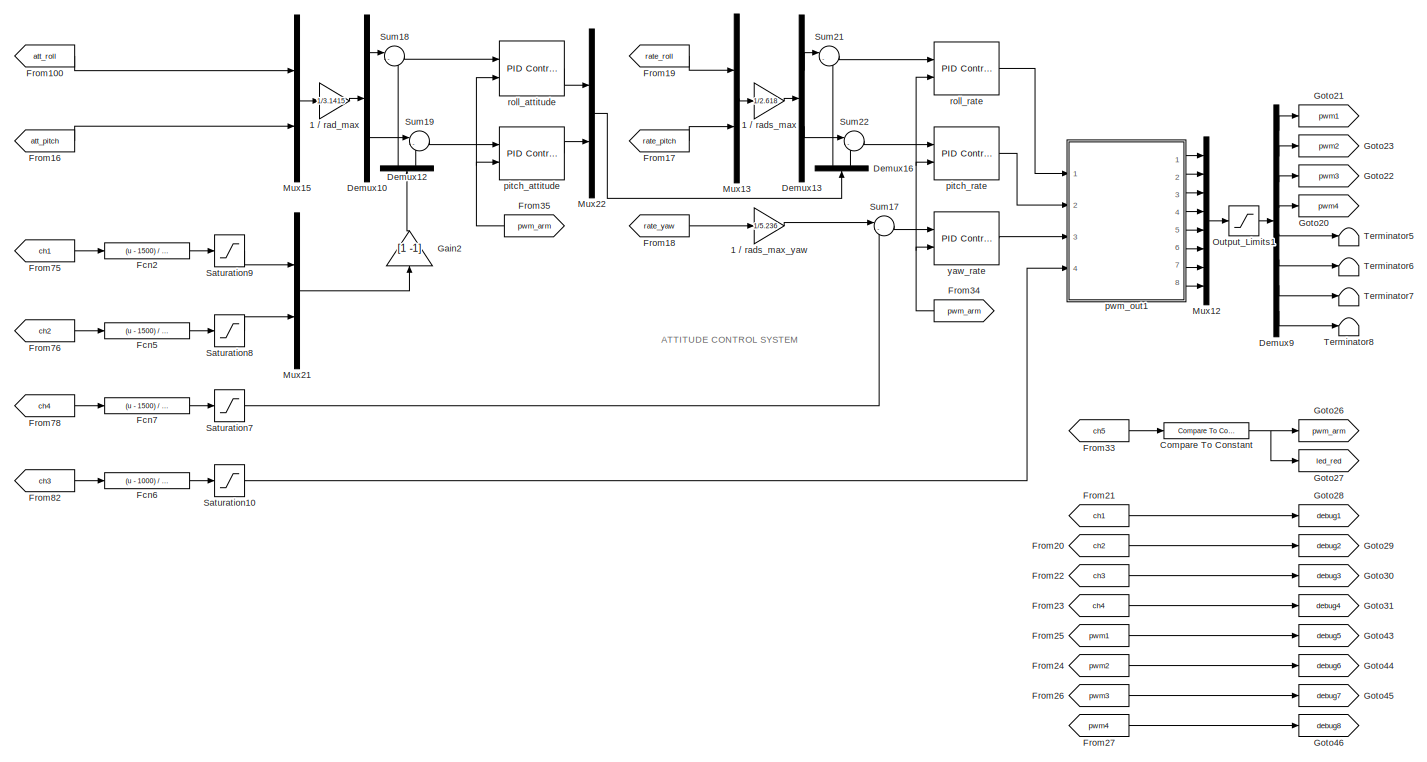
[diagram: root canvas - part 1/4, top center region]
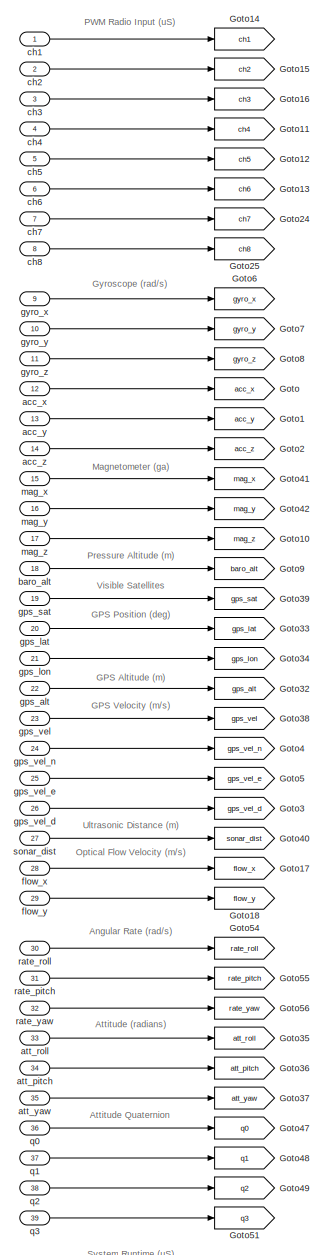
[diagram: root canvas - part 2/4, left side, full height]
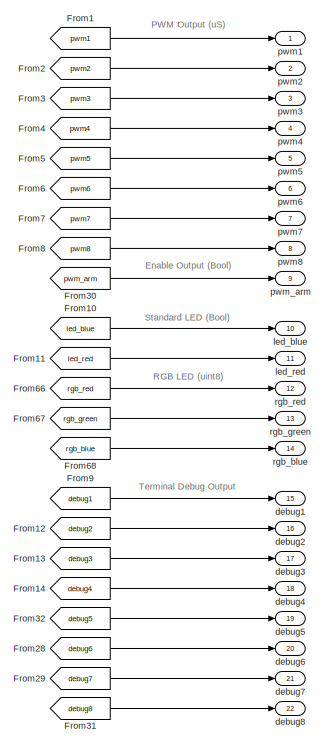
[diagram: root canvas - part 3/4, top right region]
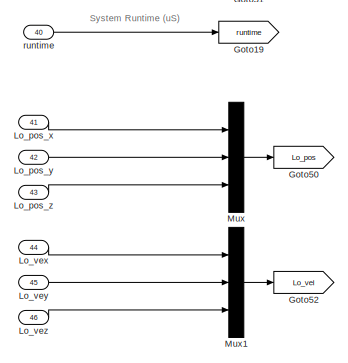
[diagram: root canvas - part 4/4, bottom left region]
MODEL slx_f82addda97a6
KIND model
CONFIG AbsTol = auto
CONFIG FixedStep = 0.004
CONFIG MaxStep = auto
CONFIG MinStep = auto
CONFIG RelTol = 1e-3
CONFIG SampleTimeConstraint = Unconstrained
CONFIG Solver = FixedStepDiscrete
CONFIG SolverMode = SingleTasking
CONFIG SolverName = FixedStepDiscrete
CONFIG StartTime = 0.0
CONFIG StopTime = inf
BLOCK [Gain] 1 // rad_max
  Commented = on
  Gain = 1/3.1415
  OutDataTypeStr = Inherit: Inherit via internal rule
  ParamDataTypeStr = Inherit: Inherit via internal rule
  SaturateOnIntegerOverflow = off
BLOCK [Gain] 1 // rads_max
  Commented = on
  Gain = 1/2.618
  OutDataTypeStr = Inherit: Inherit via internal rule
  ParamDataTypeStr = Inherit: Inherit via internal rule
  SaturateOnIntegerOverflow = off
BLOCK [Gain] 1 // rads_max_yaw
  Commented = on
  Gain = 1/5.236
  OutDataTypeStr = Inherit: Inherit via internal rule
  ParamDataTypeStr = Inherit: Inherit via internal rule
  SaturateOnIntegerOverflow = off
BLOCK [Reference] Compare To Constant  REF=simulink/Logic and Bit
Operations/Compare
To Constant
  Commented = on
  OutDataTypeStr = boolean
  Ports = [1, 1]
  SourceBlock = simulink/Logic and Bit\nOperations/Compare\nTo Constant
  SourceType = Compare To Constant
  ZeroCross = on
  const = 1500
  relop = >=
BLOCK [Demux] Demux10
  Commented = on
  DisplayOption = bar
  Outputs = 2
  Ports = [1, 2]
BLOCK [Demux] Demux12
  Commented = on
  DisplayOption = bar
  Outputs = 2
  Ports = [1, 2]
BLOCK [Demux] Demux13
  Commented = on
  DisplayOption = bar
  Outputs = 2
  Ports = [1, 2]
BLOCK [Demux] Demux16
  Commented = on
  DisplayOption = bar
  Outputs = 2
  Ports = [1, 2]
BLOCK [Demux] Demux9
  Commented = on
  DisplayOption = bar
  Outputs = 8
  Ports = [1, 8]
BLOCK [Fcn] Fcn2
  Commented = on
  Expr = (u - 1500) / 500
BLOCK [Fcn] Fcn5
  Commented = on
  Expr = (u - 1500) / 500
BLOCK [Fcn] Fcn6
  Commented = on
  Expr = (u - 1000) / 1000
BLOCK [Fcn] Fcn7
  Commented = on
  Expr = (u - 1500) / 500
BLOCK [From] From1
  GotoTag = pwm1
  TagVisibility = global
BLOCK [From] From10
  GotoTag = led_blue
BLOCK [From] From100
  Commented = on
  GotoTag = att_roll
  TagVisibility = global
BLOCK [From] From11
  GotoTag = led_red
  TagVisibility = global
BLOCK [From] From12
  GotoTag = debug2
  TagVisibility = global
BLOCK [From] From13
  GotoTag = debug3
  TagVisibility = global
BLOCK [From] From14
  GotoTag = debug4
  TagVisibility = global
BLOCK [From] From16
  Commented = on
  GotoTag = att_pitch
  TagVisibility = global
BLOCK [From] From17
  Commented = on
  GotoTag = rate_pitch
  TagVisibility = global
BLOCK [From] From18
  Commented = on
  GotoTag = rate_yaw
  TagVisibility = global
BLOCK [From] From19
  Commented = on
  GotoTag = rate_roll
  TagVisibility = global
BLOCK [From] From2
  GotoTag = pwm2
  TagVisibility = global
BLOCK [From] From20
  Commented = on
  GotoTag = ch2
  TagVisibility = global
BLOCK [From] From21
  Commented = on
  GotoTag = ch1
  TagVisibility = global
BLOCK [From] From22
  Commented = on
  GotoTag = ch3
  TagVisibility = global
BLOCK [From] From23
  Commented = on
  GotoTag = ch4
  TagVisibility = global
BLOCK [From] From24
  Commented = on
  GotoTag = pwm2
  TagVisibility = global
BLOCK [From] From25
  Commented = on
  GotoTag = pwm1
  TagVisibility = global
BLOCK [From] From26
  Commented = on
  GotoTag = pwm3
  TagVisibility = global
BLOCK [From] From27
  Commented = on
  GotoTag = pwm4
  TagVisibility = global
BLOCK [From] From28
  GotoTag = debug6
  TagVisibility = global
BLOCK [From] From29
  GotoTag = debug7
  TagVisibility = global
BLOCK [From] From3
  GotoTag = pwm3
BLOCK [From] From30
  GotoTag = pwm_arm
  TagVisibility = global
BLOCK [From] From31
  GotoTag = debug8
  TagVisibility = global
BLOCK [From] From32
  GotoTag = debug5
  TagVisibility = global
BLOCK [From] From33
  Commented = on
  GotoTag = ch5
  TagVisibility = global
BLOCK [From] From34
  Commented = on
  GotoTag = pwm_arm
  TagVisibility = global
BLOCK [From] From35
  Commented = on
  GotoTag = pwm_arm
  TagVisibility = global
BLOCK [From] From4
  GotoTag = pwm4
BLOCK [From] From5
  GotoTag = pwm5
BLOCK [From] From6
  GotoTag = pwm6
BLOCK [From] From66
  GotoTag = rgb_red
  TagVisibility = global
BLOCK [From] From67
  GotoTag = rgb_green
  TagVisibility = global
BLOCK [From] From68
  GotoTag = rgb_blue
  TagVisibility = global
BLOCK [From] From7
  GotoTag = pwm7
BLOCK [From] From75
  Commented = on
  GotoTag = ch1
  TagVisibility = global
BLOCK [From] From76
  Commented = on
  GotoTag = ch2
  TagVisibility = global
BLOCK [From] From78
  Commented = on
  GotoTag = ch4
  TagVisibility = global
BLOCK [From] From8
  GotoTag = pwm8
BLOCK [From] From82
  Commented = on
  GotoTag = ch3
  TagVisibility = global
BLOCK [From] From9
  GotoTag = debug1
  TagVisibility = global
BLOCK [Gain] Gain2
  Commented = on
  Gain = [1 -1]
  OutDataTypeStr = Inherit: Inherit via internal rule
  ParamDataTypeStr = Inherit: Inherit via internal rule
  SaturateOnIntegerOverflow = off
BLOCK [Goto] Goto
  GotoTag = acc_x
  TagVisibility = global
BLOCK [Goto] Goto1
  GotoTag = acc_y
  TagVisibility = global
BLOCK [Goto] Goto10
  GotoTag = mag_z
  TagVisibility = global
BLOCK [Goto] Goto11
  GotoTag = ch4
  TagVisibility = global
BLOCK [Goto] Goto12
  GotoTag = ch5
  TagVisibility = global
BLOCK [Goto] Goto13
  GotoTag = ch6
  TagVisibility = global
BLOCK [Goto] Goto14
  GotoTag = ch1
  TagVisibility = global
BLOCK [Goto] Goto15
  GotoTag = ch2
  TagVisibility = global
BLOCK [Goto] Goto16
  GotoTag = ch3
  TagVisibility = global
BLOCK [Goto] Goto17
  GotoTag = flow_x
  TagVisibility = global
BLOCK [Goto] Goto18
  GotoTag = flow_y
  TagVisibility = global
BLOCK [Goto] Goto19
  GotoTag = runtime
  TagVisibility = global
BLOCK [Goto] Goto2
  GotoTag = acc_z
  TagVisibility = global
BLOCK [Goto] Goto20
  Commented = on
  GotoTag = pwm4
  TagVisibility = global
BLOCK [Goto] Goto21
  Commented = on
  GotoTag = pwm1
  TagVisibility = global
BLOCK [Goto] Goto22
  Commented = on
  GotoTag = pwm3
  TagVisibility = global
BLOCK [Goto] Goto23
  Commented = on
  GotoTag = pwm2
  TagVisibility = global
BLOCK [Goto] Goto24
  GotoTag = ch7
  TagVisibility = global
BLOCK [Goto] Goto25
  GotoTag = ch8
  TagVisibility = global
BLOCK [Goto] Goto26
  Commented = on
  GotoTag = pwm_arm
  TagVisibility = global
BLOCK [Goto] Goto27
  Commented = on
  GotoTag = led_red
  TagVisibility = global
BLOCK [Goto] Goto28
  Commented = on
  GotoTag = debug1
  TagVisibility = global
BLOCK [Goto] Goto29
  Commented = on
  GotoTag = debug2
  TagVisibility = global
BLOCK [Goto] Goto3
  GotoTag = gps_vel_d
  TagVisibility = global
BLOCK [Goto] Goto30
  Commented = on
  GotoTag = debug3
  TagVisibility = global
BLOCK [Goto] Goto31
  Commented = on
  GotoTag = debug4
  TagVisibility = global
BLOCK [Goto] Goto32
  GotoTag = gps_alt
  TagVisibility = global
BLOCK [Goto] Goto33
  GotoTag = gps_lat
  TagVisibility = global
BLOCK [Goto] Goto34
  GotoTag = gps_lon
  TagVisibility = global
BLOCK [Goto] Goto35
  GotoTag = att_roll
  TagVisibility = global
BLOCK [Goto] Goto36
  GotoTag = att_pitch
  TagVisibility = global
BLOCK [Goto] Goto37
  GotoTag = att_yaw
  TagVisibility = global
BLOCK [Goto] Goto38
  GotoTag = gps_vel
  TagVisibility = global
BLOCK [Goto] Goto39
  GotoTag = gps_sat
  TagVisibility = global
BLOCK [Goto] Goto4
  GotoTag = gps_vel_n
  TagVisibility = global
BLOCK [Goto] Goto40
  GotoTag = sonar_dist
  TagVisibility = global
BLOCK [Goto] Goto41
  GotoTag = mag_x
  TagVisibility = global
BLOCK [Goto] Goto42
  GotoTag = mag_y
  TagVisibility = global
BLOCK [Goto] Goto43
  Commented = on
  GotoTag = debug5
  TagVisibility = global
BLOCK [Goto] Goto44
  Commented = on
  GotoTag = debug6
  TagVisibility = global
BLOCK [Goto] Goto45
  Commented = on
  GotoTag = debug7
  TagVisibility = global
BLOCK [Goto] Goto46
  Commented = on
  GotoTag = debug8
  TagVisibility = global
BLOCK [Goto] Goto47
  GotoTag = q0
  TagVisibility = global
BLOCK [Goto] Goto48
  GotoTag = q1
  TagVisibility = global
BLOCK [Goto] Goto49
  GotoTag = q2
  TagVisibility = global
BLOCK [Goto] Goto5
  GotoTag = gps_vel_e
  TagVisibility = global
BLOCK [Goto] Goto50
  GotoTag = Lo_pos
  TagVisibility = global
BLOCK [Goto] Goto51
  GotoTag = q3
  TagVisibility = global
BLOCK [Goto] Goto52
  GotoTag = Lo_vel
  TagVisibility = global
BLOCK [Goto] Goto54
  GotoTag = rate_roll
  TagVisibility = global
BLOCK [Goto] Goto55
  GotoTag = rate_pitch
  TagVisibility = global
BLOCK [Goto] Goto56
  GotoTag = rate_yaw
  TagVisibility = global
BLOCK [Goto] Goto6
  GotoTag = gyro_x
  TagVisibility = global
BLOCK [Goto] Goto7
  GotoTag = gyro_y
  TagVisibility = global
BLOCK [Goto] Goto8
  GotoTag = gyro_z
  TagVisibility = global
BLOCK [Goto] Goto9
  GotoTag = baro_alt
  TagVisibility = global
BLOCK [Inport] Lo_pos_x
  IconDisplay = Port number
  Port = 41
  PortDimensions = [1,1]
  SampleTime = T_ctrl
  VarSizeSig = No
BLOCK [Inport] Lo_pos_y
  IconDisplay = Port number
  Port = 42
  PortDimensions = [1,1]
  SampleTime = T_ctrl
  VarSizeSig = No
BLOCK [Inport] Lo_pos_z
  IconDisplay = Port number
  Port = 43
  PortDimensions = [1,1]
  SampleTime = T_ctrl
  VarSizeSig = No
BLOCK [Inport] Lo_vex
  IconDisplay = Port number
  Port = 44
  PortDimensions = [1,1]
  SampleTime = T_ctrl
  VarSizeSig = No
BLOCK [Inport] Lo_vey
  IconDisplay = Port number
  Port = 45
  PortDimensions = [1,1]
  SampleTime = T_ctrl
  VarSizeSig = No
BLOCK [Inport] Lo_vez
  IconDisplay = Port number
  Port = 46
  PortDimensions = [1,1]
  SampleTime = T_ctrl
  VarSizeSig = No
BLOCK [Mux] Mux
  DisplayOption = bar
  Inputs = 3
  Ports = [3, 1]
BLOCK [Mux] Mux1
  DisplayOption = bar
  Inputs = 3
  Ports = [3, 1]
BLOCK [Mux] Mux12
  Commented = on
  DisplayOption = bar
  Inputs = 8
  Ports = [8, 1]
BLOCK [Mux] Mux13
  Commented = on
  DisplayOption = bar
  Inputs = 2
  Ports = [2, 1]
BLOCK [Mux] Mux15
  Commented = on
  DisplayOption = bar
  Inputs = 2
  Ports = [2, 1]
BLOCK [Mux] Mux21
  Commented = on
  DisplayOption = bar
  Inputs = 2
  Ports = [2, 1]
BLOCK [Mux] Mux22
  Commented = on
  DisplayOption = bar
  Inputs = 2
  Ports = [2, 1]
BLOCK [Saturate] Output_Limits1
  Commented = on
  InputPortMap = u0
  LowerLimit = 1000
  Ports = [1, 1]
  UpperLimit = 2000
BLOCK [Saturate] Saturation10
  Commented = on
  InputPortMap = u0
  LowerLimit = 0
  Ports = [1, 1]
  UpperLimit = 1
BLOCK [Saturate] Saturation7
  Commented = on
  InputPortMap = u0
  LowerLimit = -1
  Ports = [1, 1]
  UpperLimit = 1
BLOCK [Saturate] Saturation8
  Commented = on
  InputPortMap = u0
  LowerLimit = -1
  Ports = [1, 1]
  UpperLimit = 1
BLOCK [Saturate] Saturation9
  Commented = on
  InputPortMap = u0
  LowerLimit = -1
  Ports = [1, 1]
  UpperLimit = 1
BLOCK [Sum] Sum17
  Commented = on
  IconShape = round
  InputSameDT = off
  Inputs = |-+
  OutDataTypeStr = Inherit: Inherit via internal rule
  Ports = [2, 1]
  SaturateOnIntegerOverflow = off
BLOCK [Sum] Sum18
  Commented = on
  IconShape = round
  InputSameDT = off
  Inputs = |-+
  OutDataTypeStr = Inherit: Inherit via internal rule
  Ports = [2, 1]
  SaturateOnIntegerOverflow = off
BLOCK [Sum] Sum19
  Commented = on
  IconShape = round
  InputSameDT = off
  Inputs = |-+
  OutDataTypeStr = Inherit: Inherit via internal rule
  Ports = [2, 1]
  SaturateOnIntegerOverflow = off
BLOCK [Sum] Sum21
  Commented = on
  IconShape = round
  InputSameDT = off
  Inputs = |-+
  OutDataTypeStr = Inherit: Inherit via internal rule
  Ports = [2, 1]
  SaturateOnIntegerOverflow = off
BLOCK [Sum] Sum22
  Commented = on
  IconShape = round
  InputSameDT = off
  Inputs = |-+
  OutDataTypeStr = Inherit: Inherit via internal rule
  Ports = [2, 1]
  SaturateOnIntegerOverflow = off
BLOCK [Terminator] Terminator5
  Commented = on
BLOCK [Terminator] Terminator6
  Commented = on
BLOCK [Terminator] Terminator7
  Commented = on
BLOCK [Terminator] Terminator8
  Commented = on
BLOCK [Inport] acc_x
  IconDisplay = Port number
  Port = 12
BLOCK [Inport] acc_y
  IconDisplay = Port number
  Port = 13
BLOCK [Inport] acc_z
  IconDisplay = Port number
  Port = 14
BLOCK [Inport] att_pitch
  IconDisplay = Port number
  Port = 34
BLOCK [Inport] att_roll
  IconDisplay = Port number
  Port = 33
BLOCK [Inport] att_yaw
  IconDisplay = Port number
  Port = 35
BLOCK [Inport] baro_alt
  IconDisplay = Port number
  Port = 18
BLOCK [Inport] ch1
  IconDisplay = Port number
BLOCK [Inport] ch2
  IconDisplay = Port number
  Port = 2
BLOCK [Inport] ch3
  IconDisplay = Port number
  Port = 3
BLOCK [Inport] ch4
  IconDisplay = Port number
  Port = 4
BLOCK [Inport] ch5
  IconDisplay = Port number
  Port = 5
BLOCK [Inport] ch6
  IconDisplay = Port number
  Port = 6
BLOCK [Inport] ch7
  IconDisplay = Port number
  Port = 7
BLOCK [Inport] ch8
  IconDisplay = Port number
  Port = 8
BLOCK [Outport] debug1
  IconDisplay = Port number
  Port = 15
BLOCK [Outport] debug2
  IconDisplay = Port number
  Port = 16
BLOCK [Outport] debug3
  IconDisplay = Port number
  Port = 17
BLOCK [Outport] debug4
  IconDisplay = Port number
  Port = 18
BLOCK [Outport] debug5
  IconDisplay = Port number
  Port = 19
BLOCK [Outport] debug6
  IconDisplay = Port number
  Port = 20
BLOCK [Outport] debug7
  IconDisplay = Port number
  Port = 21
BLOCK [Outport] debug8
  IconDisplay = Port number
  Port = 22
BLOCK [Inport] flow_x
  IconDisplay = Port number
  Port = 28
BLOCK [Inport] flow_y
  IconDisplay = Port number
  Port = 29
BLOCK [Inport] gps_alt
  IconDisplay = Port number
  Port = 22
BLOCK [Inport] gps_lat
  IconDisplay = Port number
  Port = 20
BLOCK [Inport] gps_lon
  IconDisplay = Port number
  Port = 21
BLOCK [Inport] gps_sat
  IconDisplay = Port number
  Port = 19
BLOCK [Inport] gps_vel
  IconDisplay = Port number
  Port = 23
BLOCK [Inport] gps_vel_d
  IconDisplay = Port number
  Port = 26
BLOCK [Inport] gps_vel_e
  IconDisplay = Port number
  Port = 25
BLOCK [Inport] gps_vel_n
  IconDisplay = Port number
  Port = 24
BLOCK [Inport] gyro_x
  IconDisplay = Port number
  Port = 9
BLOCK [Inport] gyro_y
  IconDisplay = Port number
  Port = 10
BLOCK [Inport] gyro_z
  IconDisplay = Port number
  Port = 11
BLOCK [Outport] led_blue
  IconDisplay = Port number
  OutDataTypeStr = boolean
  Port = 10
BLOCK [Outport] led_red
  IconDisplay = Port number
  OutDataTypeStr = boolean
  Port = 11
BLOCK [Inport] mag_x
  IconDisplay = Port number
  Port = 15
BLOCK [Inport] mag_y
  IconDisplay = Port number
  Port = 16
BLOCK [Inport] mag_z
  IconDisplay = Port number
  Port = 17
BLOCK [Reference] pitch_attitude  REF=simulink/Continuous/PID Controller
  AntiWindupMode = none
  Commented = on
  Controller = PI
  ControllerParametersSource = internal
  D = 0
  DGainOutDataTypeStr = Inherit: Inherit via internal rule
  DOutDataTypeStr = Inherit: Inherit via internal rule
  DOutMax = []
  DOutMin = []
  DParamDataTypeStr = Inherit: Inherit via internal rule
  DParamMax = []
  DParamMin = []
  DProdOutDataTypeStr = Inherit: Inherit via internal rule
  DifferentiatorICPrevScaledInput = 0
  DifferentiatorOutDataTypeStr = Inherit: Inherit via internal rule
  DifferentiatorOutMax = []
  DifferentiatorOutMin = []
  ExternalReset = either
  FilterContinuousStateAttributes = ''
  FilterMethod = Forward Euler
  FilterOutDataTypeStr = Inherit: Inherit via internal rule
  FilterOutMax = []
  FilterOutMin = []
  FilterRTWStateStorageClass = Auto
  FilterStateMustResolveToSignalObject = off
  Form = Parallel
  I = 0
  IGainOutDataTypeStr = Inherit: Inherit via internal rule
  IOutDataTypeStr = Inherit: Inherit via internal rule
  IOutMax = []
  IOutMin = []
  IParamDataTypeStr = Inherit: Inherit via internal rule
  IParamMax = []
  IParamMin = []
  IProdOutDataTypeStr = Inherit: Inherit via internal rule
  IgnoreLimit = off
  InitialConditionForFilter = 0
  InitialConditionForIntegrator = 0
  InitialConditionSource = internal
  IntegratorContinuousStateAttributes = ''
  IntegratorMethod = Forward Euler
  IntegratorOutDataTypeStr = Inherit: Inherit via internal rule
  IntegratorOutMax = []
  IntegratorOutMin = []
  IntegratorRTWStateStorageClass = Auto
  IntegratorStateMustResolveToSignalObject = off
  Kb = 1
  KbOutDataTypeStr = Inherit: Inherit via internal rule
  KbOutMax = []
  KbOutMin = []
  KbParamDataTypeStr = Inherit: Inherit via internal rule
  KbParamMax = []
  KbParamMin = []
  Kt = 1
  KtOutDataTypeStr = Inherit: Inherit via internal rule
  KtOutMax = []
  KtOutMin = []
  KtParamDataTypeStr = Inherit: Inherit via internal rule
  KtParamMax = []
  KtParamMin = []
  LimitOutput = on
  LinearizeAsGain = on
  LockScale = off
  LowerSaturationLimit = -1
  N = 100
  NGainOutDataTypeStr = Inherit: Inherit via internal rule
  NOutDataTypeStr = Inherit: Inherit via internal rule
  NOutMax = []
  NOutMin = []
  NParamDataTypeStr = Inherit: Inherit via internal rule
  NParamMax = []
  NParamMin = []
  NProdOutDataTypeStr = Inherit: Inherit via internal rule
  P = 0.70
  PGainOutDataTypeStr = Inherit: Inherit via internal rule
  POutDataTypeStr = Inherit: Inherit via internal rule
  POutMax = []
  POutMin = []
  PParamDataTypeStr = Inherit: Inherit via internal rule
  PParamMax = []
  PParamMin = []
  PProdOutDataTypeStr = Inherit: Inherit via internal rule
  Ports = [2, 1]
  RndMeth = Floor
  SampleTime = -1
  SaturateOnIntegerOverflow = off
  SaturationOutDataTypeStr = Inherit: Same as input
  SaturationOutMax = []
  SaturationOutMin = []
  SourceBlock = simulink/Continuous/PID Controller
  SourceType = PID 1dof
  SumAccumDataTypeStr = Inherit: Inherit via internal rule
  SumDAccumDataTypeStr = Inherit: Inherit via internal rule
  SumDOutDataTypeStr = Inherit: Inherit via internal rule
  SumDOutMax = []
  SumDOutMin = []
  SumI1AccumDataTypeStr = Inherit: Inherit via internal rule
  SumI1OutDataTypeStr = Inherit: Inherit via internal rule
  SumI1OutMax = []
  SumI1OutMin = []
  SumI2AccumDataTypeStr = Inherit: Inherit via internal rule
  SumI2OutDataTypeStr = Inherit: Inherit via internal rule
  SumI2OutMax = []
  SumI2OutMin = []
  SumI3AccumDataTypeStr = Inherit: Inherit via internal rule
  SumI3OutDataTypeStr = Inherit: Inherit via internal rule
  SumI3OutMax = []
  SumI3OutMin = []
  SumOutDataTypeStr = Inherit: Inherit via internal rule
  SumOutMax = []
  SumOutMin = []
  TimeDomain = Discrete-time
  TrackingMode = off
  UpperSaturationLimit = 1
  UseFilter = on
  ZeroCross = on
BLOCK [Reference] pitch_rate  REF=simulink/Continuous/PID Controller
  AntiWindupMode = none
  Commented = on
  Controller = PID
  ControllerParametersSource = internal
  D = 0.003
  DGainOutDataTypeStr = Inherit: Inherit via internal rule
  DOutDataTypeStr = Inherit: Inherit via internal rule
  DOutMax = []
  DOutMin = []
  DParamDataTypeStr = Inherit: Inherit via internal rule
  DParamMax = []
  DParamMin = []
  DProdOutDataTypeStr = Inherit: Inherit via internal rule
  DifferentiatorICPrevScaledInput = 0
  DifferentiatorOutDataTypeStr = Inherit: Inherit via internal rule
  DifferentiatorOutMax = []
  DifferentiatorOutMin = []
  ExternalReset = either
  FilterContinuousStateAttributes = ''
  FilterMethod = Forward Euler
  FilterOutDataTypeStr = Inherit: Inherit via internal rule
  FilterOutMax = []
  FilterOutMin = []
  FilterRTWStateStorageClass = Auto
  FilterStateMustResolveToSignalObject = off
  Form = Parallel
  I = 0.45
  IGainOutDataTypeStr = Inherit: Inherit via internal rule
  IOutDataTypeStr = Inherit: Inherit via internal rule
  IOutMax = []
  IOutMin = []
  IParamDataTypeStr = Inherit: Inherit via internal rule
  IParamMax = []
  IParamMin = []
  IProdOutDataTypeStr = Inherit: Inherit via internal rule
  IgnoreLimit = off
  InitialConditionForFilter = 0
  InitialConditionForIntegrator = 0
  InitialConditionSource = internal
  IntegratorContinuousStateAttributes = ''
  IntegratorMethod = Forward Euler
  IntegratorOutDataTypeStr = Inherit: Inherit via internal rule
  IntegratorOutMax = []
  IntegratorOutMin = []
  IntegratorRTWStateStorageClass = Auto
  IntegratorStateMustResolveToSignalObject = off
  Kb = 1
  KbOutDataTypeStr = Inherit: Inherit via internal rule
  KbOutMax = []
  KbOutMin = []
  KbParamDataTypeStr = Inherit: Inherit via internal rule
  KbParamMax = []
  KbParamMin = []
  Kt = 1
  KtOutDataTypeStr = Inherit: Inherit via internal rule
  KtOutMax = []
  KtOutMin = []
  KtParamDataTypeStr = Inherit: Inherit via internal rule
  KtParamMax = []
  KtParamMin = []
  LimitOutput = on
  LinearizeAsGain = on
  LockScale = off
  LowerSaturationLimit = -1
  N = 100
  NGainOutDataTypeStr = Inherit: Inherit via internal rule
  NOutDataTypeStr = Inherit: Inherit via internal rule
  NOutMax = []
  NOutMin = []
  NParamDataTypeStr = Inherit: Inherit via internal rule
  NParamMax = []
  NParamMin = []
  NProdOutDataTypeStr = Inherit: Inherit via internal rule
  P = 0.45
  PGainOutDataTypeStr = Inherit: Inherit via internal rule
  POutDataTypeStr = Inherit: Inherit via internal rule
  POutMax = []
  POutMin = []
  PParamDataTypeStr = Inherit: Inherit via internal rule
  PParamMax = []
  PParamMin = []
  PProdOutDataTypeStr = Inherit: Inherit via internal rule
  Ports = [2, 1]
  RndMeth = Floor
  SampleTime = -1
  SaturateOnIntegerOverflow = off
  SaturationOutDataTypeStr = Inherit: Same as input
  SaturationOutMax = []
  SaturationOutMin = []
  SourceBlock = simulink/Continuous/PID Controller
  SourceType = PID 1dof
  SumAccumDataTypeStr = Inherit: Inherit via internal rule
  SumDAccumDataTypeStr = Inherit: Inherit via internal rule
  SumDOutDataTypeStr = Inherit: Inherit via internal rule
  SumDOutMax = []
  SumDOutMin = []
  SumI1AccumDataTypeStr = Inherit: Inherit via internal rule
  SumI1OutDataTypeStr = Inherit: Inherit via internal rule
  SumI1OutMax = []
  SumI1OutMin = []
  SumI2AccumDataTypeStr = Inherit: Inherit via internal rule
  SumI2OutDataTypeStr = Inherit: Inherit via internal rule
  SumI2OutMax = []
  SumI2OutMin = []
  SumI3AccumDataTypeStr = Inherit: Inherit via internal rule
  SumI3OutDataTypeStr = Inherit: Inherit via internal rule
  SumI3OutMax = []
  SumI3OutMin = []
  SumOutDataTypeStr = Inherit: Inherit via internal rule
  SumOutMax = []
  SumOutMin = []
  TimeDomain = Discrete-time
  TrackingMode = off
  UpperSaturationLimit = 1
  UseFilter = on
  ZeroCross = on
BLOCK [Outport] pwm1
  IconDisplay = Port number
BLOCK [Outport] pwm2
  IconDisplay = Port number
  Port = 2
BLOCK [Outport] pwm3
  IconDisplay = Port number
  Port = 3
BLOCK [Outport] pwm4
  IconDisplay = Port number
  Port = 4
BLOCK [Outport] pwm5
  IconDisplay = Port number
  Port = 5
BLOCK [Outport] pwm6
  IconDisplay = Port number
  Port = 6
BLOCK [Outport] pwm7
  IconDisplay = Port number
  Port = 7
BLOCK [Outport] pwm8
  IconDisplay = Port number
  Port = 8
BLOCK [Outport] pwm_arm
  IconDisplay = Port number
  Port = 9
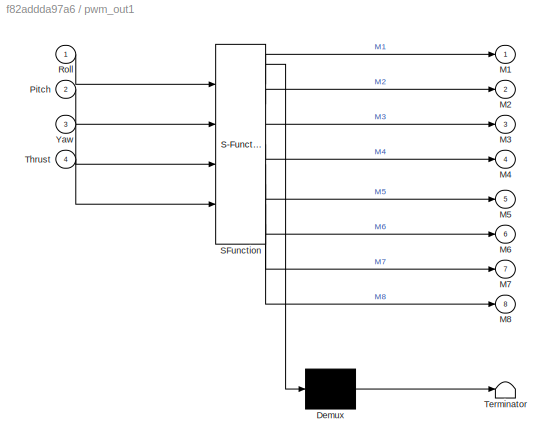
BLOCK [SubSystem] pwm_out1
  Commented = on
  ErrorFcn = Stateflow.Translate.translate
  PermitHierarchicalResolution = ExplicitOnly
  Ports = [4, 8]
  RequestExecContextInheritance = off
  SFBlockType = MATLAB Function
  SystemSampleTime = 0.004
  TreatAsAtomicUnit = on
BLOCK [Demux] pwm_out1/ Demux 
  Outputs = 1
  Ports = [1, 1]
BLOCK [S-Function] pwm_out1/ SFunction 
  FunctionName = sf_sfun
  PortCounts = [4 9]
  Ports = [4, 9]
  Tag = Stateflow S-Function simulink_app 3
BLOCK [Terminator] pwm_out1/ Terminator 
BLOCK [Outport] pwm_out1/M1
  IconDisplay = Port number
BLOCK [Outport] pwm_out1/M2
  IconDisplay = Port number
  Port = 2
BLOCK [Outport] pwm_out1/M3
  IconDisplay = Port number
  Port = 3
BLOCK [Outport] pwm_out1/M4
  IconDisplay = Port number
  Port = 4
BLOCK [Outport] pwm_out1/M5
  IconDisplay = Port number
  Port = 5
BLOCK [Outport] pwm_out1/M6
  IconDisplay = Port number
  Port = 6
BLOCK [Outport] pwm_out1/M7
  IconDisplay = Port number
  Port = 7
BLOCK [Outport] pwm_out1/M8
  IconDisplay = Port number
  Port = 8
BLOCK [Inport] pwm_out1/Pitch
  IconDisplay = Port number
  Port = 2
BLOCK [Inport] pwm_out1/Roll
  IconDisplay = Port number
BLOCK [Inport] pwm_out1/Thrust
  IconDisplay = Port number
  Port = 4
BLOCK [Inport] pwm_out1/Yaw
  IconDisplay = Port number
  Port = 3
BLOCK [Inport] q0
  IconDisplay = Port number
  Port = 36
BLOCK [Inport] q1
  IconDisplay = Port number
  Port = 37
BLOCK [Inport] q2
  IconDisplay = Port number
  Port = 38
BLOCK [Inport] q3
  IconDisplay = Port number
  Port = 39
BLOCK [Inport] rate_pitch
  IconDisplay = Port number
  Port = 31
BLOCK [Inport] rate_roll
  IconDisplay = Port number
  Port = 30
BLOCK [Inport] rate_yaw
  IconDisplay = Port number
  Port = 32
BLOCK [Outport] rgb_blue
  IconDisplay = Port number
  OutDataTypeStr = uint8
  Port = 14
BLOCK [Outport] rgb_green
  IconDisplay = Port number
  OutDataTypeStr = uint8
  Port = 13
BLOCK [Outport] rgb_red
  IconDisplay = Port number
  OutDataTypeStr = uint8
  Port = 12
BLOCK [Reference] roll_attitude  REF=simulink/Continuous/PID Controller
  AntiWindupMode = none
  Commented = on
  Controller = PI
  ControllerParametersSource = internal
  D = 0
  DGainOutDataTypeStr = Inherit: Inherit via internal rule
  DOutDataTypeStr = Inherit: Inherit via internal rule
  DOutMax = []
  DOutMin = []
  DParamDataTypeStr = Inherit: Inherit via internal rule
  DParamMax = []
  DParamMin = []
  DProdOutDataTypeStr = Inherit: Inherit via internal rule
  DifferentiatorICPrevScaledInput = 0
  DifferentiatorOutDataTypeStr = Inherit: Inherit via internal rule
  DifferentiatorOutMax = []
  DifferentiatorOutMin = []
  ExternalReset = either
  FilterContinuousStateAttributes = ''
  FilterMethod = Forward Euler
  FilterOutDataTypeStr = Inherit: Inherit via internal rule
  FilterOutMax = []
  FilterOutMin = []
  FilterRTWStateStorageClass = Auto
  FilterStateMustResolveToSignalObject = off
  Form = Parallel
  I = 0
  IGainOutDataTypeStr = Inherit: Inherit via internal rule
  IOutDataTypeStr = Inherit: Inherit via internal rule
  IOutMax = []
  IOutMin = []
  IParamDataTypeStr = Inherit: Inherit via internal rule
  IParamMax = []
  IParamMin = []
  IProdOutDataTypeStr = Inherit: Inherit via internal rule
  IgnoreLimit = off
  InitialConditionForFilter = 0
  InitialConditionForIntegrator = 0
  InitialConditionSource = internal
  IntegratorContinuousStateAttributes = ''
  IntegratorMethod = Forward Euler
  IntegratorOutDataTypeStr = Inherit: Inherit via internal rule
  IntegratorOutMax = []
  IntegratorOutMin = []
  IntegratorRTWStateStorageClass = Auto
  IntegratorStateMustResolveToSignalObject = off
  Kb = 1
  KbOutDataTypeStr = Inherit: Inherit via internal rule
  KbOutMax = []
  KbOutMin = []
  KbParamDataTypeStr = Inherit: Inherit via internal rule
  KbParamMax = []
  KbParamMin = []
  Kt = 1
  KtOutDataTypeStr = Inherit: Inherit via internal rule
  KtOutMax = []
  KtOutMin = []
  KtParamDataTypeStr = Inherit: Inherit via internal rule
  KtParamMax = []
  KtParamMin = []
  LimitOutput = on
  LinearizeAsGain = on
  LockScale = off
  LowerSaturationLimit = -1
  N = 100
  NGainOutDataTypeStr = Inherit: Inherit via internal rule
  NOutDataTypeStr = Inherit: Inherit via internal rule
  NOutMax = []
  NOutMin = []
  NParamDataTypeStr = Inherit: Inherit via internal rule
  NParamMax = []
  NParamMin = []
  NProdOutDataTypeStr = Inherit: Inherit via internal rule
  P = 0.70
  PGainOutDataTypeStr = Inherit: Inherit via internal rule
  POutDataTypeStr = Inherit: Inherit via internal rule
  POutMax = []
  POutMin = []
  PParamDataTypeStr = Inherit: Inherit via internal rule
  PParamMax = []
  PParamMin = []
  PProdOutDataTypeStr = Inherit: Inherit via internal rule
  Ports = [2, 1]
  RndMeth = Floor
  SampleTime = -1
  SaturateOnIntegerOverflow = off
  SaturationOutDataTypeStr = Inherit: Same as input
  SaturationOutMax = []
  SaturationOutMin = []
  SourceBlock = simulink/Continuous/PID Controller
  SourceType = PID 1dof
  SumAccumDataTypeStr = Inherit: Inherit via internal rule
  SumDAccumDataTypeStr = Inherit: Inherit via internal rule
  SumDOutDataTypeStr = Inherit: Inherit via internal rule
  SumDOutMax = []
  SumDOutMin = []
  SumI1AccumDataTypeStr = Inherit: Inherit via internal rule
  SumI1OutDataTypeStr = Inherit: Inherit via internal rule
  SumI1OutMax = []
  SumI1OutMin = []
  SumI2AccumDataTypeStr = Inherit: Inherit via internal rule
  SumI2OutDataTypeStr = Inherit: Inherit via internal rule
  SumI2OutMax = []
  SumI2OutMin = []
  SumI3AccumDataTypeStr = Inherit: Inherit via internal rule
  SumI3OutDataTypeStr = Inherit: Inherit via internal rule
  SumI3OutMax = []
  SumI3OutMin = []
  SumOutDataTypeStr = Inherit: Inherit via internal rule
  SumOutMax = []
  SumOutMin = []
  TimeDomain = Discrete-time
  TrackingMode = off
  UpperSaturationLimit = 1
  UseFilter = on
  ZeroCross = on
BLOCK [Reference] roll_rate  REF=simulink/Continuous/PID Controller
  AntiWindupMode = none
  Commented = on
  Controller = PID
  ControllerParametersSource = internal
  D = 0.003
  DGainOutDataTypeStr = Inherit: Inherit via internal rule
  DOutDataTypeStr = Inherit: Inherit via internal rule
  DOutMax = []
  DOutMin = []
  DParamDataTypeStr = Inherit: Inherit via internal rule
  DParamMax = []
  DParamMin = []
  DProdOutDataTypeStr = Inherit: Inherit via internal rule
  DifferentiatorICPrevScaledInput = 0
  DifferentiatorOutDataTypeStr = Inherit: Inherit via internal rule
  DifferentiatorOutMax = []
  DifferentiatorOutMin = []
  ExternalReset = either
  FilterContinuousStateAttributes = ''
  FilterMethod = Forward Euler
  FilterOutDataTypeStr = Inherit: Inherit via internal rule
  FilterOutMax = []
  FilterOutMin = []
  FilterRTWStateStorageClass = Auto
  FilterStateMustResolveToSignalObject = off
  Form = Parallel
  I = 0.45
  IGainOutDataTypeStr = Inherit: Inherit via internal rule
  IOutDataTypeStr = Inherit: Inherit via internal rule
  IOutMax = []
  IOutMin = []
  IParamDataTypeStr = Inherit: Inherit via internal rule
  IParamMax = []
  IParamMin = []
  IProdOutDataTypeStr = Inherit: Inherit via internal rule
  IgnoreLimit = off
  InitialConditionForFilter = 0
  InitialConditionForIntegrator = 0
  InitialConditionSource = internal
  IntegratorContinuousStateAttributes = ''
  IntegratorMethod = Forward Euler
  IntegratorOutDataTypeStr = Inherit: Inherit via internal rule
  IntegratorOutMax = []
  IntegratorOutMin = []
  IntegratorRTWStateStorageClass = Auto
  IntegratorStateMustResolveToSignalObject = off
  Kb = 1
  KbOutDataTypeStr = Inherit: Inherit via internal rule
  KbOutMax = []
  KbOutMin = []
  KbParamDataTypeStr = Inherit: Inherit via internal rule
  KbParamMax = []
  KbParamMin = []
  Kt = 1
  KtOutDataTypeStr = Inherit: Inherit via internal rule
  KtOutMax = []
  KtOutMin = []
  KtParamDataTypeStr = Inherit: Inherit via internal rule
  KtParamMax = []
  KtParamMin = []
  LimitOutput = on
  LinearizeAsGain = on
  LockScale = off
  LowerSaturationLimit = -1
  N = 100
  NGainOutDataTypeStr = Inherit: Inherit via internal rule
  NOutDataTypeStr = Inherit: Inherit via internal rule
  NOutMax = []
  NOutMin = []
  NParamDataTypeStr = Inherit: Inherit via internal rule
  NParamMax = []
  NParamMin = []
  NProdOutDataTypeStr = Inherit: Inherit via internal rule
  P = 0.45
  PGainOutDataTypeStr = Inherit: Inherit via internal rule
  POutDataTypeStr = Inherit: Inherit via internal rule
  POutMax = []
  POutMin = []
  PParamDataTypeStr = Inherit: Inherit via internal rule
  PParamMax = []
  PParamMin = []
  PProdOutDataTypeStr = Inherit: Inherit via internal rule
  Ports = [2, 1]
  RndMeth = Floor
  SampleTime = -1
  SaturateOnIntegerOverflow = off
  SaturationOutDataTypeStr = Inherit: Same as input
  SaturationOutMax = []
  SaturationOutMin = []
  SourceBlock = simulink/Continuous/PID Controller
  SourceType = PID 1dof
  SumAccumDataTypeStr = Inherit: Inherit via internal rule
  SumDAccumDataTypeStr = Inherit: Inherit via internal rule
  SumDOutDataTypeStr = Inherit: Inherit via internal rule
  SumDOutMax = []
  SumDOutMin = []
  SumI1AccumDataTypeStr = Inherit: Inherit via internal rule
  SumI1OutDataTypeStr = Inherit: Inherit via internal rule
  SumI1OutMax = []
  SumI1OutMin = []
  SumI2AccumDataTypeStr = Inherit: Inherit via internal rule
  SumI2OutDataTypeStr = Inherit: Inherit via internal rule
  SumI2OutMax = []
  SumI2OutMin = []
  SumI3AccumDataTypeStr = Inherit: Inherit via internal rule
  SumI3OutDataTypeStr = Inherit: Inherit via internal rule
  SumI3OutMax = []
  SumI3OutMin = []
  SumOutDataTypeStr = Inherit: Inherit via internal rule
  SumOutMax = []
  SumOutMin = []
  TimeDomain = Discrete-time
  TrackingMode = off
  UpperSaturationLimit = 1
  UseFilter = on
  ZeroCross = on
BLOCK [Inport] runtime
  IconDisplay = Port number
  Port = 40
BLOCK [Inport] sonar_dist
  IconDisplay = Port number
  Port = 27
BLOCK [Reference] yaw_rate  REF=simulink/Continuous/PID Controller
  AntiWindupMode = none
  Commented = on
  Controller = PID
  ControllerParametersSource = internal
  D = 0
  DGainOutDataTypeStr = Inherit: Inherit via internal rule
  DOutDataTypeStr = Inherit: Inherit via internal rule
  DOutMax = []
  DOutMin = []
  DParamDataTypeStr = Inherit: Inherit via internal rule
  DParamMax = []
  DParamMin = []
  DProdOutDataTypeStr = Inherit: Inherit via internal rule
  DifferentiatorICPrevScaledInput = 0
  DifferentiatorOutDataTypeStr = Inherit: Inherit via internal rule
  DifferentiatorOutMax = []
  DifferentiatorOutMin = []
  ExternalReset = either
  FilterContinuousStateAttributes = ''
  FilterMethod = Forward Euler
  FilterOutDataTypeStr = Inherit: Inherit via internal rule
  FilterOutMax = []
  FilterOutMin = []
  FilterRTWStateStorageClass = Auto
  FilterStateMustResolveToSignalObject = off
  Form = Parallel
  I = 1.05
  IGainOutDataTypeStr = Inherit: Inherit via internal rule
  IOutDataTypeStr = Inherit: Inherit via internal rule
  IOutMax = []
  IOutMin = []
  IParamDataTypeStr = Inherit: Inherit via internal rule
  IParamMax = []
  IParamMin = []
  IProdOutDataTypeStr = Inherit: Inherit via internal rule
  IgnoreLimit = off
  InitialConditionForFilter = 0
  InitialConditionForIntegrator = 0
  InitialConditionSource = internal
  IntegratorContinuousStateAttributes = ''
  IntegratorMethod = Forward Euler
  IntegratorOutDataTypeStr = Inherit: Inherit via internal rule
  IntegratorOutMax = []
  IntegratorOutMin = []
  IntegratorRTWStateStorageClass = Auto
  IntegratorStateMustResolveToSignalObject = off
  Kb = 1
  KbOutDataTypeStr = Inherit: Inherit via internal rule
  KbOutMax = []
  KbOutMin = []
  KbParamDataTypeStr = Inherit: Inherit via internal rule
  KbParamMax = []
  KbParamMin = []
  Kt = 1
  KtOutDataTypeStr = Inherit: Inherit via internal rule
  KtOutMax = []
  KtOutMin = []
  KtParamDataTypeStr = Inherit: Inherit via internal rule
  KtParamMax = []
  KtParamMin = []
  LimitOutput = on
  LinearizeAsGain = on
  LockScale = off
  LowerSaturationLimit = -1
  N = 100
  NGainOutDataTypeStr = Inherit: Inherit via internal rule
  NOutDataTypeStr = Inherit: Inherit via internal rule
  NOutMax = []
  NOutMin = []
  NParamDataTypeStr = Inherit: Inherit via internal rule
  NParamMax = []
  NParamMin = []
  NProdOutDataTypeStr = Inherit: Inherit via internal rule
  P = 1.05
  PGainOutDataTypeStr = Inherit: Inherit via internal rule
  POutDataTypeStr = Inherit: Inherit via internal rule
  POutMax = []
  POutMin = []
  PParamDataTypeStr = Inherit: Inherit via internal rule
  PParamMax = []
  PParamMin = []
  PProdOutDataTypeStr = Inherit: Inherit via internal rule
  Ports = [2, 1]
  RndMeth = Floor
  SampleTime = -1
  SaturateOnIntegerOverflow = off
  SaturationOutDataTypeStr = Inherit: Same as input
  SaturationOutMax = []
  SaturationOutMin = []
  SourceBlock = simulink/Continuous/PID Controller
  SourceType = PID 1dof
  SumAccumDataTypeStr = Inherit: Inherit via internal rule
  SumDAccumDataTypeStr = Inherit: Inherit via internal rule
  SumDOutDataTypeStr = Inherit: Inherit via internal rule
  SumDOutMax = []
  SumDOutMin = []
  SumI1AccumDataTypeStr = Inherit: Inherit via internal rule
  SumI1OutDataTypeStr = Inherit: Inherit via internal rule
  SumI1OutMax = []
  SumI1OutMin = []
  SumI2AccumDataTypeStr = Inherit: Inherit via internal rule
  SumI2OutDataTypeStr = Inherit: Inherit via internal rule
  SumI2OutMax = []
  SumI2OutMin = []
  SumI3AccumDataTypeStr = Inherit: Inherit via internal rule
  SumI3OutDataTypeStr = Inherit: Inherit via internal rule
  SumI3OutMax = []
  SumI3OutMin = []
  SumOutDataTypeStr = Inherit: Inherit via internal rule
  SumOutMax = []
  SumOutMin = []
  TimeDomain = Discrete-time
  TrackingMode = off
  UpperSaturationLimit = 1
  UseFilter = on
  ZeroCross = on
ANNOTATION (root): ATTITUDE CONTROL SYSTEM
ANNOTATION (root): Angular Rate (rad/s)
ANNOTATION (root): Attitude (radians)
ANNOTATION (root): Attitude Quaternion
ANNOTATION (root): Enable Output (Bool)
ANNOTATION (root): GPS Altitude (m)
ANNOTATION (root): GPS Position (deg)
ANNOTATION (root): GPS Velocity (m/s)
ANNOTATION (root): Gyroscope (rad/s)
ANNOTATION (root): Magnetometer (ga)
ANNOTATION (root): Optical Flow Velocity (m/s)
ANNOTATION (root): PWM Output (uS)
ANNOTATION (root): PWM Radio Input (uS)
ANNOTATION (root): Pressure Altitude (m)
ANNOTATION (root): RGB LED (uint8)
ANNOTATION (root): Standard LED (Bool)
ANNOTATION (root): System Runtime (uS)
ANNOTATION (root): Terminal Debug Output
ANNOTATION (root): Ultrasonic Distance (m)
ANNOTATION (root): Visible Satellites
LINE 1 // rad_max:1 -> Demux10:1
LINE 1 // rads_max:1 -> Demux13:1
LINE 1 // rads_max_yaw:1 -> Sum17:1
NET Compare To Constant:1 -> Goto26:1, Goto27:1
LINE Demux10:1 -> Sum18:1
LINE Demux10:2 -> Sum19:1
LINE Demux12:1 -> Sum18:2
LINE Demux12:2 -> Sum19:2
LINE Demux13:1 -> Sum21:1
LINE Demux13:2 -> Sum22:1
LINE Demux16:1 -> Sum21:2
LINE Demux16:2 -> Sum22:2
LINE Demux9:1 -> Goto21:1
LINE Demux9:2 -> Goto23:1
LINE Demux9:3 -> Goto22:1
LINE Demux9:4 -> Goto20:1
LINE Demux9:5 -> Terminator5:1
LINE Demux9:6 -> Terminator6:1
LINE Demux9:7 -> Terminator7:1
LINE Demux9:8 -> Terminator8:1
LINE Fcn2:1 -> Saturation9:1
LINE Fcn5:1 -> Saturation8:1
LINE Fcn6:1 -> Saturation10:1
LINE Fcn7:1 -> Saturation7:1
LINE From100:1 -> Mux15:1
LINE From10:1 -> led_blue:1
LINE From11:1 -> led_red:1
LINE From12:1 -> debug2:1
LINE From13:1 -> debug3:1
LINE From14:1 -> debug4:1
LINE From16:1 -> Mux15:2
LINE From17:1 -> Mux13:2
LINE From18:1 -> 1 // rads_max_yaw:1
LINE From19:1 -> Mux13:1
LINE From1:1 -> pwm1:1
LINE From20:1 -> Goto29:1
LINE From21:1 -> Goto28:1
LINE From22:1 -> Goto30:1
LINE From23:1 -> Goto31:1
LINE From24:1 -> Goto44:1
LINE From25:1 -> Goto43:1
LINE From26:1 -> Goto45:1
LINE From27:1 -> Goto46:1
LINE From28:1 -> debug6:1
LINE From29:1 -> debug7:1
LINE From2:1 -> pwm2:1
LINE From30:1 -> pwm_arm:1
LINE From31:1 -> debug8:1
LINE From32:1 -> debug5:1
LINE From33:1 -> Compare To Constant:1
NET From34:1 -> pitch_rate:2, roll_rate:2, yaw_rate:2
NET From35:1 -> pitch_attitude:2, roll_attitude:2
LINE From3:1 -> pwm3:1
LINE From4:1 -> pwm4:1
LINE From5:1 -> pwm5:1
LINE From66:1 -> rgb_red:1
LINE From67:1 -> rgb_green:1
LINE From68:1 -> rgb_blue:1
LINE From6:1 -> pwm6:1
LINE From75:1 -> Fcn2:1
LINE From76:1 -> Fcn5:1
LINE From78:1 -> Fcn7:1
LINE From7:1 -> pwm7:1
LINE From82:1 -> Fcn6:1
LINE From8:1 -> pwm8:1
LINE From9:1 -> debug1:1
LINE Gain2:1 -> Demux12:1
LINE Lo_pos_x:1 -> Mux:1
LINE Lo_pos_y:1 -> Mux:2
LINE Lo_pos_z:1 -> Mux:3
LINE Lo_vex:1 -> Mux1:1
LINE Lo_vey:1 -> Mux1:2
LINE Lo_vez:1 -> Mux1:3
LINE Mux12:1 -> Output_Limits1:1
LINE Mux13:1 -> 1 // rads_max:1
LINE Mux15:1 -> 1 // rad_max:1
LINE Mux1:1 -> Goto52:1
LINE Mux21:1 -> Gain2:1
LINE Mux22:1 -> Demux16:1
LINE Mux:1 -> Goto50:1
LINE Output_Limits1:1 -> Demux9:1
LINE Saturation10:1 -> pwm_out1:4
LINE Saturation7:1 -> Sum17:2
LINE Saturation8:1 -> Mux21:2
LINE Saturation9:1 -> Mux21:1
LINE Sum17:1 -> yaw_rate:1
LINE Sum18:1 -> roll_attitude:1
LINE Sum19:1 -> pitch_attitude:1
LINE Sum21:1 -> roll_rate:1
LINE Sum22:1 -> pitch_rate:1
LINE acc_x:1 -> Goto:1
LINE acc_y:1 -> Goto1:1
LINE acc_z:1 -> Goto2:1
LINE att_pitch:1 -> Goto36:1
LINE att_roll:1 -> Goto35:1
LINE att_yaw:1 -> Goto37:1
LINE baro_alt:1 -> Goto9:1
LINE ch1:1 -> Goto14:1
LINE ch2:1 -> Goto15:1
LINE ch3:1 -> Goto16:1
LINE ch4:1 -> Goto11:1
LINE ch5:1 -> Goto12:1
LINE ch6:1 -> Goto13:1
LINE ch7:1 -> Goto24:1
LINE ch8:1 -> Goto25:1
LINE flow_x:1 -> Goto17:1
LINE flow_y:1 -> Goto18:1
LINE gps_alt:1 -> Goto32:1
LINE gps_lat:1 -> Goto33:1
LINE gps_lon:1 -> Goto34:1
LINE gps_sat:1 -> Goto39:1
LINE gps_vel:1 -> Goto38:1
LINE gps_vel_d:1 -> Goto3:1
LINE gps_vel_e:1 -> Goto5:1
LINE gps_vel_n:1 -> Goto4:1
LINE gyro_x:1 -> Goto6:1
LINE gyro_y:1 -> Goto7:1
LINE gyro_z:1 -> Goto8:1
LINE mag_x:1 -> Goto41:1
LINE mag_y:1 -> Goto42:1
LINE mag_z:1 -> Goto10:1
LINE pitch_attitude:1 -> Mux22:2
LINE pitch_rate:1 -> pwm_out1:2
LINE pwm_out1:1 -> Mux12:1
LINE pwm_out1:2 -> Mux12:2
LINE pwm_out1:3 -> Mux12:3
LINE pwm_out1:4 -> Mux12:4
LINE pwm_out1:5 -> Mux12:5
LINE pwm_out1:6 -> Mux12:6
LINE pwm_out1:7 -> Mux12:7
LINE pwm_out1:8 -> Mux12:8
LINE q0:1 -> Goto47:1
LINE q1:1 -> Goto48:1
LINE q2:1 -> Goto49:1
LINE q3:1 -> Goto51:1
LINE rate_pitch:1 -> Goto55:1
LINE rate_roll:1 -> Goto54:1
LINE rate_yaw:1 -> Goto56:1
LINE roll_attitude:1 -> Mux22:1
LINE roll_rate:1 -> pwm_out1:1
LINE runtime:1 -> Goto19:1
LINE sonar_dist:1 -> Goto40:1
LINE yaw_rate:1 -> pwm_out1:3
note: NET lines group one-source signal fan-out (src -> all destinations, sorted); 1:1 wires keep LINE
CHART pwm_out1 states=1 transitions=1
  STATE_LABEL 'eML_blk_kernel()'
  STATE_LABEL 'SCRIPT:\nfunction [M1, M2, M3, M4, M5, M6, M7, M8] = motor_mixer(Roll, Pitch, Yaw, Thrust)\n\nidle_PWM = 1000;\n\n% Quad X\nM1 = ((Roll + Pitch - Yaw) / 2 * Thrust + Thrust) * 1000 + idle_PWM;\nM2 = ((-Roll + Pitch + Yaw) / 2 * Thrust + Thrust) * 1000 + idle_PWM;\nM3 = ((-Roll - Pitch - Yaw) / 2 * Thrust + Thrust) * 1000 + idle_PWM;\nM4 = ((Roll - Pitch + Yaw) / 2 * Thrust + Thrust) * 1000 + idle_PWM;\nM5 =...<+821ch>'
